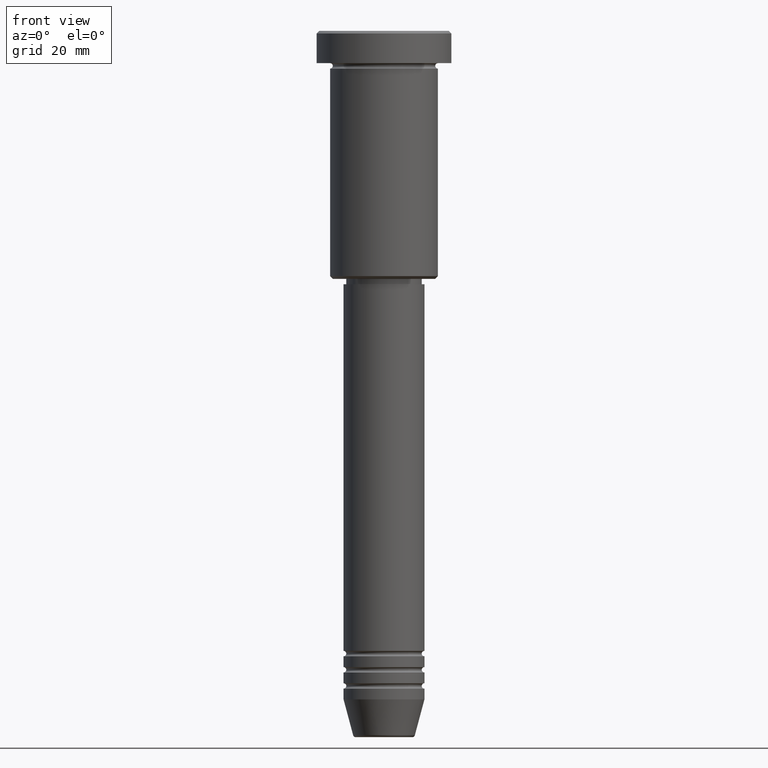
[diagram: clean part render]
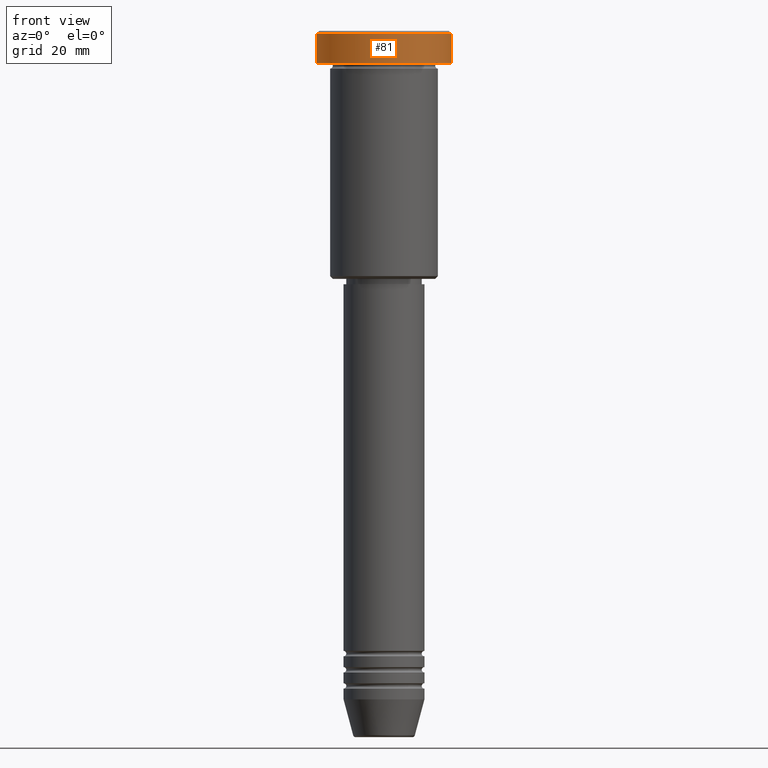
[diagram: same view with one face highlighted and labeled with its STEP entity id]
A machine part, front view. The second image highlights one B-rep face of the part: STEP entity #81.
In plain terms, the highlighted cylindrical surface (partial cylindrical patch) has radius 12.5 mm, axis along (-0, -0, 1).
Its self-contained STEP definition (entity closure, byte-faithful):
#44 = EDGE_CURVE ( 'NONE', #622, #1037, #883, .T. ) ;
#63 = EDGE_CURVE ( 'NONE', #622, #304, #389, .T. ) ;
#65 = CYLINDRICAL_SURFACE ( 'NONE', #446, 12.50000000000000000 ) ;
#78 = VECTOR ( 'NONE', #653, 1000.000000000000000 ) ;
#81 = ADVANCED_FACE ( 'NONE', ( #963 ), #65, .T. ) ;
#136 = CARTESIAN_POINT ( 'NONE',  ( 0.000000000000000000, 0.000000000000000000, -5.999999999999996447 ) ) ;
#150 = DIRECTION ( 'NONE',  ( 1.000000000000000000, 0.000000000000000000, 0.000000000000000000 ) ) ;
#156 = CARTESIAN_POINT ( 'NONE',  ( -12.50000000000000000, 1.530808498934191521E-15, 0.000000000000000000 ) ) ;
#180 = CARTESIAN_POINT ( 'NONE',  ( 12.50000000000000000, 0.000000000000000000, -0.4999999999999917843 ) ) ;
#182 = CARTESIAN_POINT ( 'NONE',  ( -12.50000000000000000, 1.530808498934191521E-15, -0.4999999999999917843 ) ) ;
#191 = AXIS2_PLACEMENT_3D ( 'NONE', #953, #876, #312 ) ;
#224 = ORIENTED_EDGE ( 'NONE', *, *, #44, .F. ) ;
#304 = VERTEX_POINT ( 'NONE', #1113 ) ;
#312 = DIRECTION ( 'NONE',  ( 1.000000000000000000, 0.000000000000000000, 0.000000000000000000 ) ) ;
#315 = AXIS2_PLACEMENT_3D ( 'NONE', #136, #786, #429 ) ;
#330 = ORIENTED_EDGE ( 'NONE', *, *, #688, .T. ) ;
#357 = VECTOR ( 'NONE', #525, 1000.000000000000000 ) ;
#368 = LINE ( 'NONE', #636, #78 ) ;
#389 = CIRCLE ( 'NONE', #315, 12.50000000000000000 ) ;
#429 = DIRECTION ( 'NONE',  ( 1.000000000000000000, 0.000000000000000000, 0.000000000000000000 ) ) ;
#440 = VERTEX_POINT ( 'NONE', #180 ) ;
#446 = AXIS2_PLACEMENT_3D ( 'NONE', #611, #780, #150 ) ;
#525 = DIRECTION ( 'NONE',  ( -0.000000000000000000, -0.000000000000000000, 1.000000000000000000 ) ) ;
#581 = ORIENTED_EDGE ( 'NONE', *, *, #63, .T. ) ;
#611 = CARTESIAN_POINT ( 'NONE',  ( 0.000000000000000000, 0.000000000000000000, 0.000000000000000000 ) ) ;
#622 = VERTEX_POINT ( 'NONE', #1180 ) ;
#636 = CARTESIAN_POINT ( 'NONE',  ( 12.50000000000000000, 0.000000000000000000, 0.000000000000000000 ) ) ;
#653 = DIRECTION ( 'NONE',  ( -0.000000000000000000, -0.000000000000000000, 1.000000000000000000 ) ) ;
#682 = ORIENTED_EDGE ( 'NONE', *, *, #1156, .T. ) ;
#688 = EDGE_CURVE ( 'NONE', #304, #440, #368, .T. ) ;
#780 = DIRECTION ( 'NONE',  ( -0.000000000000000000, -0.000000000000000000, 1.000000000000000000 ) ) ;
#786 = DIRECTION ( 'NONE',  ( -0.000000000000000000, -0.000000000000000000, 1.000000000000000000 ) ) ;
#835 = CIRCLE ( 'NONE', #191, 12.50000000000000000 ) ;
#876 = DIRECTION ( 'NONE',  ( 0.000000000000000000, 0.000000000000000000, -1.000000000000000000 ) ) ;
#883 = LINE ( 'NONE', #156, #357 ) ;
#953 = CARTESIAN_POINT ( 'NONE',  ( 0.000000000000000000, 0.000000000000000000, -0.4999999999999917843 ) ) ;
#963 = FACE_OUTER_BOUND ( 'NONE', #1123, .T. ) ;
#1037 = VERTEX_POINT ( 'NONE', #182 ) ;
#1113 = CARTESIAN_POINT ( 'NONE',  ( 12.50000000000000000, 0.000000000000000000, -5.999999999999996447 ) ) ;
#1123 = EDGE_LOOP ( 'NONE', ( #224, #581, #330, #682 ) ) ;
#1156 = EDGE_CURVE ( 'NONE', #440, #1037, #835, .T. ) ;
#1180 = CARTESIAN_POINT ( 'NONE',  ( -12.50000000000000000, 1.530808498934191521E-15, -5.999999999999996447 ) ) ;